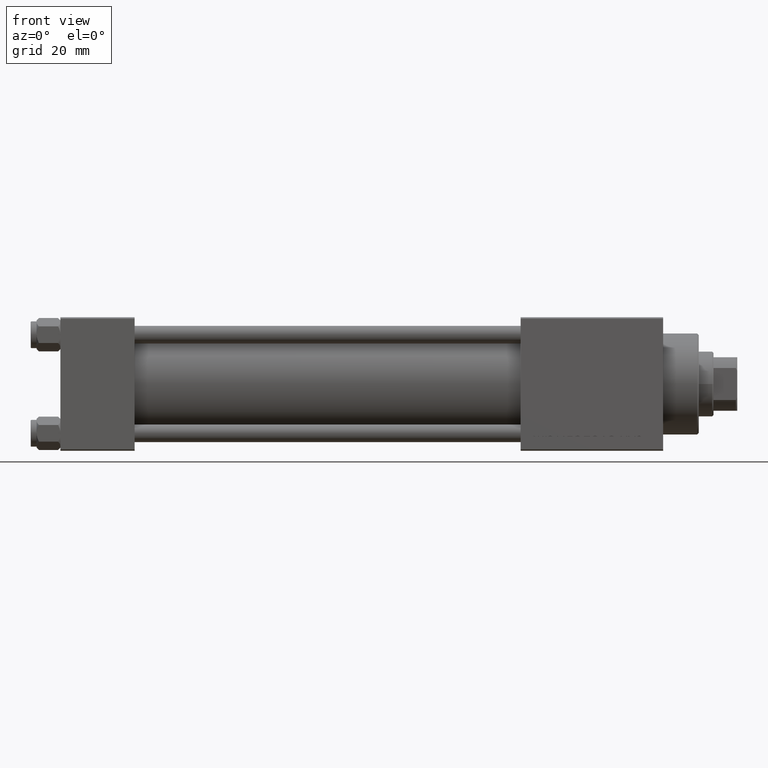
[diagram: clean part render]
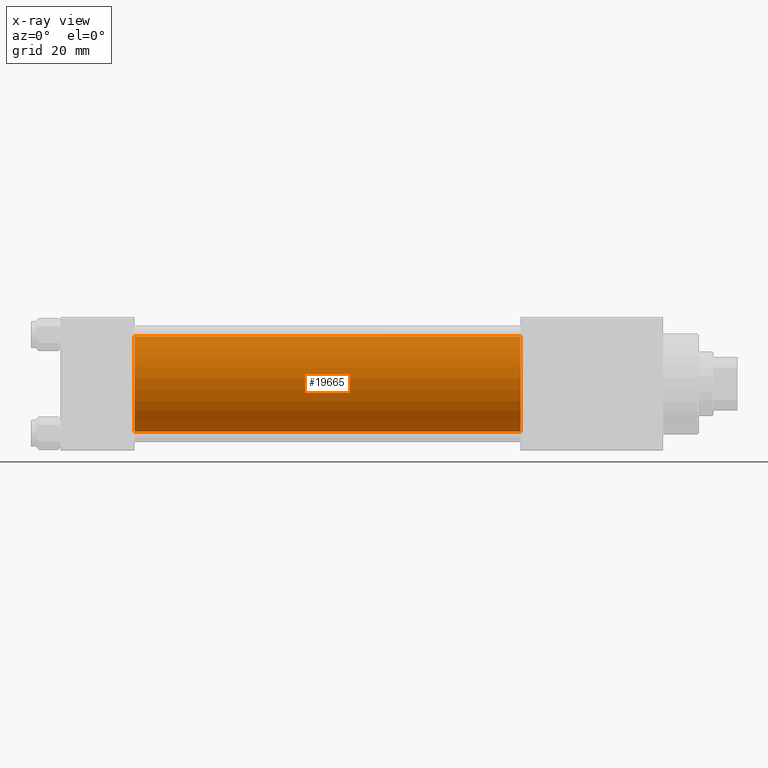
[diagram: x-ray — body ghosted, one internal face saturated and labeled with its STEP entity id]
A machine part, front view, then the same camera in x-ray: the body is ghosted and one INTERNAL B-rep face — a face not visible from any outside direction — is saturated and labeled: STEP entity #19665.
In plain terms, the highlighted cylindrical surface (partial cylindrical patch) has radius 16 mm, axis along (-1, -0, -0).
Its self-contained STEP definition (entity closure, byte-faithful):
#755 = CIRCLE ( 'NONE', #25950, 16.00000000000000000 ) ;
#1390 = VERTEX_POINT ( 'NONE', #17021 ) ;
#1451 = DIRECTION ( 'NONE',  ( 1.000000000000000000, 0.000000000000000000, 0.000000000000000000 ) ) ;
#1557 = VERTEX_POINT ( 'NONE', #36392 ) ;
#1876 = DIRECTION ( 'NONE',  ( 0.000000000000000000, 0.000000000000000000, -1.000000000000000000 ) ) ;
#2327 = AXIS2_PLACEMENT_3D ( 'NONE', #28110, #48451, #1876 ) ;
#2368 = VECTOR ( 'NONE', #15804, 1000.000000000000000 ) ;
#3128 = CIRCLE ( 'NONE', #2327, 16.00000000000000000 ) ;
#5092 = VECTOR ( 'NONE', #29764, 1000.000000000000000 ) ;
#5450 = CARTESIAN_POINT ( 'NONE',  ( 25.00000000000000000, -6.426503353294456087E-16, -16.00000000000000000 ) ) ;
#5740 = ORIENTED_EDGE ( 'NONE', *, *, #34082, .T. ) ;
#6099 = VERTEX_POINT ( 'NONE', #11997 ) ;
#6292 = EDGE_CURVE ( 'NONE', #6099, #1390, #33092, .T. ) ;
#8390 = CARTESIAN_POINT ( 'NONE',  ( 155.0000000000000000, -2.602085213965210642E-15, 0.000000000000000000 ) ) ;
#11997 = CARTESIAN_POINT ( 'NONE',  ( 155.0000000000000000, -2.602085213965210642E-15, 16.00000000000000000 ) ) ;
#12100 = VERTEX_POINT ( 'NONE', #5450 ) ;
#13759 = CARTESIAN_POINT ( 'NONE',  ( 155.0000000000000000, -2.602085213965210642E-15, 16.00000000000000000 ) ) ;
#15804 = DIRECTION ( 'NONE',  ( -1.000000000000000000, -0.000000000000000000, -0.000000000000000000 ) ) ;
#17021 = CARTESIAN_POINT ( 'NONE',  ( 25.00000000000000000, -2.602085213965210642E-15, 16.00000000000000000 ) ) ;
#19665 = ADVANCED_FACE ( 'NONE', ( #28735 ), #48335, .F. ) ;
#20792 = CARTESIAN_POINT ( 'NONE',  ( 155.0000000000000000, -2.602085213965210642E-15, 0.000000000000000000 ) ) ;
#25176 = ORIENTED_EDGE ( 'NONE', *, *, #30083, .F. ) ;
#25950 = AXIS2_PLACEMENT_3D ( 'NONE', #20792, #1451, #35566 ) ;
#28110 = CARTESIAN_POINT ( 'NONE',  ( 25.00000000000000000, -2.602085213965210642E-15, 0.000000000000000000 ) ) ;
#28735 = FACE_OUTER_BOUND ( 'NONE', #37387, .T. ) ;
#29764 = DIRECTION ( 'NONE',  ( -1.000000000000000000, -0.000000000000000000, -0.000000000000000000 ) ) ;
#29978 = DIRECTION ( 'NONE',  ( 0.000000000000000000, 0.000000000000000000, 1.000000000000000000 ) ) ;
#30083 = EDGE_CURVE ( 'NONE', #1390, #12100, #3128, .T. ) ;
#31061 = CARTESIAN_POINT ( 'NONE',  ( 155.0000000000000000, -6.426503353294456087E-16, -16.00000000000000000 ) ) ;
#32747 = ORIENTED_EDGE ( 'NONE', *, *, #6292, .F. ) ;
#33092 = LINE ( 'NONE', #13759, #5092 ) ;
#33303 = DIRECTION ( 'NONE',  ( -1.000000000000000000, -0.000000000000000000, -0.000000000000000000 ) ) ;
#34082 = EDGE_CURVE ( 'NONE', #6099, #1557, #755, .T. ) ;
#34569 = EDGE_CURVE ( 'NONE', #1557, #12100, #39201, .T. ) ;
#35566 = DIRECTION ( 'NONE',  ( 0.000000000000000000, 0.000000000000000000, -1.000000000000000000 ) ) ;
#36392 = CARTESIAN_POINT ( 'NONE',  ( 155.0000000000000000, -6.426503353294456087E-16, -16.00000000000000000 ) ) ;
#37387 = EDGE_LOOP ( 'NONE', ( #5740, #41335, #25176, #32747 ) ) ;
#39201 = LINE ( 'NONE', #31061, #2368 ) ;
#41335 = ORIENTED_EDGE ( 'NONE', *, *, #34569, .T. ) ;
#48335 = CYLINDRICAL_SURFACE ( 'NONE', #49960, 16.00000000000000000 ) ;
#48451 = DIRECTION ( 'NONE',  ( 1.000000000000000000, 0.000000000000000000, 0.000000000000000000 ) ) ;
#49960 = AXIS2_PLACEMENT_3D ( 'NONE', #8390, #33303, #29978 ) ;